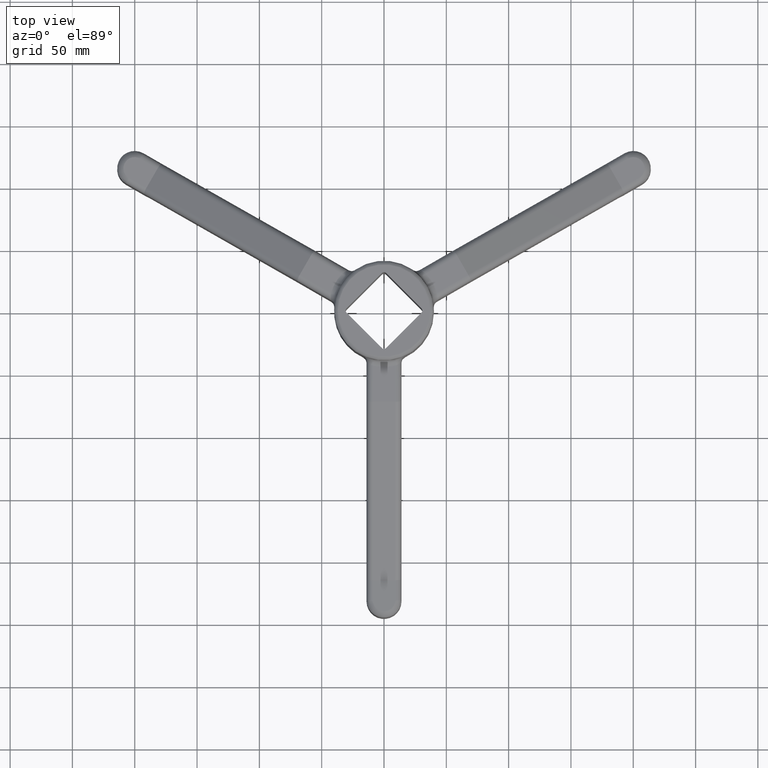
[diagram: clean part render]
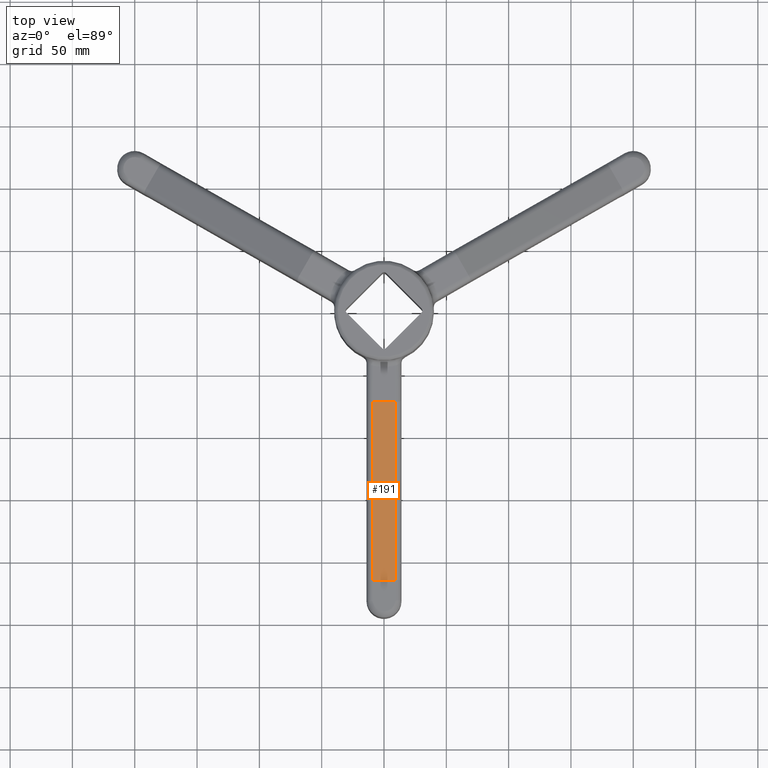
[diagram: same view with one face highlighted and labeled with its STEP entity id]
A machine part, top view. The second image highlights one B-rep face of the part: STEP entity #191.
In plain terms, the highlighted planar face has unit normal (-0, 0.4319, -0.9019).
Its self-contained STEP definition (entity closure, byte-faithful):
#7=CARTESIAN_POINT('',(9.005722366202960,-214.999999983884490,-79.999999999999986));
#8=VERTEX_POINT('',#7);
#31=CARTESIAN_POINT('',(9.005722112097089,-72.999999983884450,-11.999999999999995));
#32=VERTEX_POINT('',#31);
#45=CARTESIAN_POINT('',(9.005722112097089,-72.999999983884450,-11.999999999999995));
#46=DIRECTION('',(1.613964E-009,-0.901919134345838,-0.431904937574063));
#47=VECTOR('',#46,157.442052832145240);
#48=LINE('',#45,#47);
#49=EDGE_CURVE('',#32,#8,#48,.T.);
#93=CARTESIAN_POINT('',(-9.005722912626453,-215.000000016115560,-79.999999999999986));
#94=VERTEX_POINT('',#93);
#140=CARTESIAN_POINT('',(-9.005723166732391,-73.000000016115507,-11.999999999999995));
#141=VERTEX_POINT('',#140);
#161=CARTESIAN_POINT('',(-9.005723166732391,-73.000000016115507,-11.999999999999995));
#162=DIRECTION('',(1.613965E-009,-0.901919134345838,-0.431904937574063));
#163=VECTOR('',#162,157.442052832145210);
#164=LINE('',#161,#163);
#165=EDGE_CURVE('',#141,#94,#164,.T.);
#170=CARTESIAN_POINT('',(356.456892800064510,-72.999999362128094,-11.999999999999995));
#171=DIRECTION('',(-7.728845E-010,0.431904937574063,-0.901919134345838));
#172=DIRECTION('',(1.613965E-009,-0.901919134345838,-0.431904937574063));
#173=AXIS2_PLACEMENT_3D('',#170,#171,#172);
#174=PLANE('',#173);
#175=ORIENTED_EDGE('',*,*,#165,.T.);
#176=CARTESIAN_POINT('',(9.005722366202974,-214.999999983884520,-79.999999999999986));
#177=DIRECTION('',(-1.0,-1.789477E-009,0.0));
#178=VECTOR('',#177,18.011445278829399);
#179=LINE('',#176,#178);
#180=EDGE_CURVE('',#8,#94,#179,.T.);
#181=ORIENTED_EDGE('',*,*,#180,.F.);
#182=ORIENTED_EDGE('',*,*,#49,.F.);
#183=CARTESIAN_POINT('',(9.005722112097089,-72.999999983884436,-11.999999999999995));
#184=DIRECTION('',(-1.0,-1.789479E-009,0.0));
#185=VECTOR('',#184,18.011445278829456);
#186=LINE('',#183,#185);
#187=EDGE_CURVE('',#32,#141,#186,.T.);
#188=ORIENTED_EDGE('',*,*,#187,.T.);
#189=EDGE_LOOP('',(#175,#181,#182,#188));
#190=FACE_OUTER_BOUND('',#189,.T.);
#191=ADVANCED_FACE('',(#190),#174,.F.);